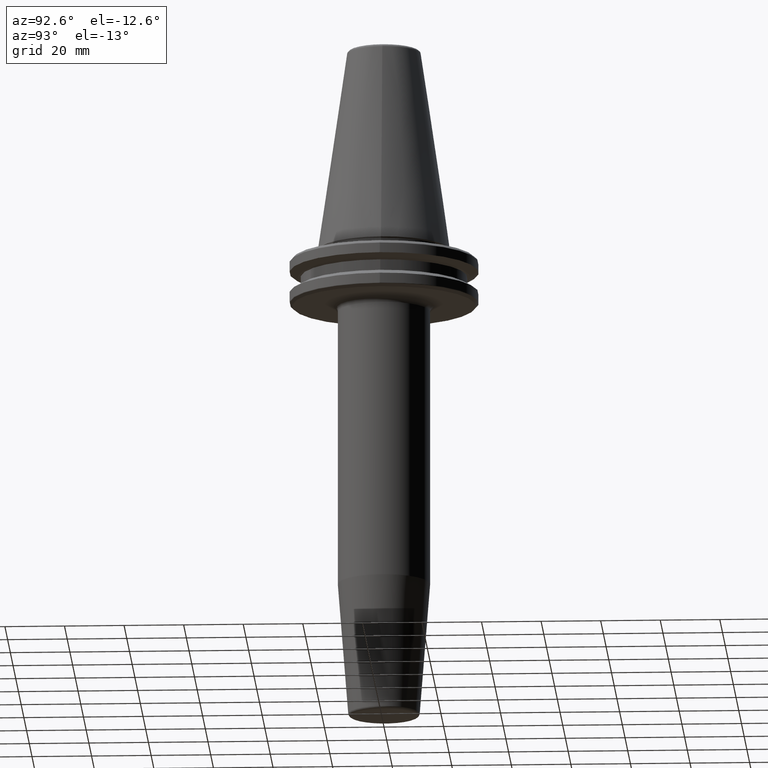
[diagram: clean part render]
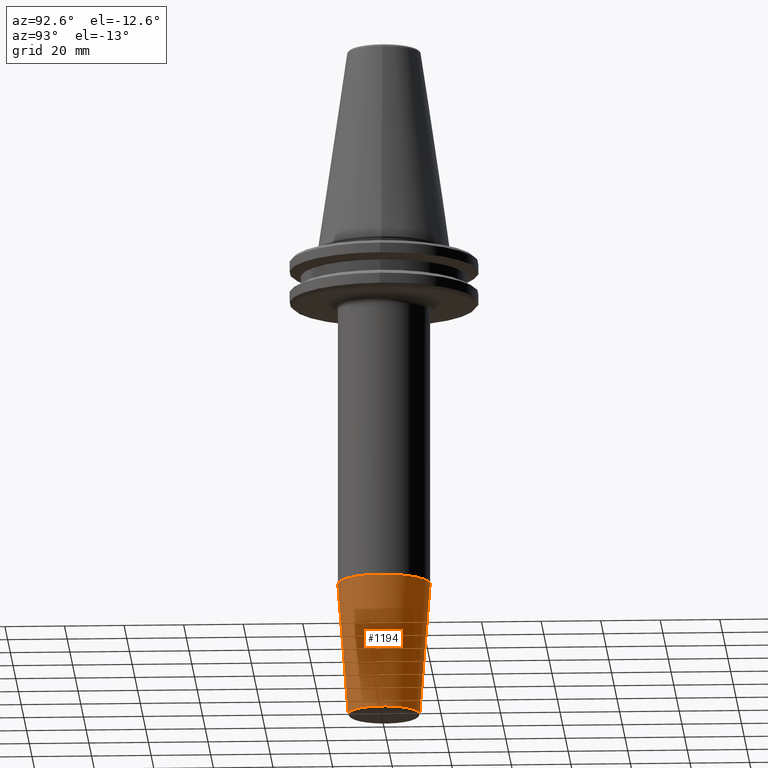
[diagram: same view with one face highlighted and labeled with its STEP entity id]
A machine part, auxiliary view. The second image highlights one B-rep face of the part: STEP entity #1194.
In plain terms, the highlighted conical surface has half-angle 4.5 deg.
Its self-contained STEP definition (entity closure, byte-faithful):
#22 = DIRECTION ( 'NONE',  ( 0.0000000000000000000, -0.07845909572783677000, 0.9969173337331286300 ) ) ;
#24 = ORIENTED_EDGE ( 'NONE', *, *, #651, .F. ) ;
#65 = EDGE_CURVE ( 'NONE', #402, #1019, #843, .T. ) ;
#103 = DIRECTION ( 'NONE',  ( -0.0000000000000000000, 1.256330602389183300E-016, -1.000000000000000000 ) ) ;
#121 = AXIS2_PLACEMENT_3D ( 'NONE', #693, #103, #787 ) ;
#181 = AXIS2_PLACEMENT_3D ( 'NONE', #352, #828, #367 ) ;
#234 = CARTESIAN_POINT ( 'NONE',  ( 0.0000000000000000000, 12.00000000000000000, -159.0784590957278500 ) ) ;
#287 = VECTOR ( 'NONE', #22, 1000.000000000000000 ) ;
#309 = CONICAL_SURFACE ( 'NONE', #325, 12.00000000000000000, 0.07853981633973650100 ) ;
#325 = AXIS2_PLACEMENT_3D ( 'NONE', #1146, #1243, #762 ) ;
#352 = CARTESIAN_POINT ( 'NONE',  ( 0.0000000000000000000, 3.310199825829634700E-016, -159.0784590957278500 ) ) ;
#367 = DIRECTION ( 'NONE',  ( 0.0000000000000000000, 1.000000000000000000, 0.0000000000000000000 ) ) ;
#382 = VERTEX_POINT ( 'NONE', #963 ) ;
#402 = VERTEX_POINT ( 'NONE', #234 ) ;
#481 = ORIENTED_EDGE ( 'NONE', *, *, #1092, .T. ) ;
#539 = CARTESIAN_POINT ( 'NONE',  ( 0.0000000000000000000, -12.00000000000000000, -159.0784590957278500 ) ) ;
#542 = ORIENTED_EDGE ( 'NONE', *, *, #65, .F. ) ;
#568 = EDGE_CURVE ( 'NONE', #402, #833, #1235, .T. ) ;
#596 = FACE_OUTER_BOUND ( 'NONE', #1203, .T. ) ;
#651 = EDGE_CURVE ( 'NONE', #1019, #382, #1052, .T. ) ;
#669 = VECTOR ( 'NONE', #1214, 1000.000000000000000 ) ;
#685 = CARTESIAN_POINT ( 'NONE',  ( 1.469576158976823900E-015, -12.00000000000000000, -159.0784590957278500 ) ) ;
#693 = CARTESIAN_POINT ( 'NONE',  ( 0.0000000000000000000, -5.256097865015170500E-015, -114.6067425191115900 ) ) ;
#712 = CIRCLE ( 'NONE', #121, 15.50000000000000500 ) ;
#736 = CARTESIAN_POINT ( 'NONE',  ( 1.469576158976823900E-015, 12.00000000000000000, -159.0784590957278500 ) ) ;
#762 = DIRECTION ( 'NONE',  ( 0.0000000000000000000, -1.000000000000000000, 0.0000000000000000000 ) ) ;
#787 = DIRECTION ( 'NONE',  ( 0.0000000000000000000, 1.000000000000000000, 0.0000000000000000000 ) ) ;
#828 = DIRECTION ( 'NONE',  ( -0.0000000000000000000, 1.256330602389183300E-016, -1.000000000000000000 ) ) ;
#833 = VERTEX_POINT ( 'NONE', #1150 ) ;
#843 = CIRCLE ( 'NONE', #181, 12.00000000000000000 ) ;
#963 = CARTESIAN_POINT ( 'NONE',  ( 0.0000000000000000000, -15.50000000000001100, -114.6067425191115900 ) ) ;
#1016 = ORIENTED_EDGE ( 'NONE', *, *, #568, .T. ) ;
#1019 = VERTEX_POINT ( 'NONE', #685 ) ;
#1052 = LINE ( 'NONE', #539, #287 ) ;
#1092 = EDGE_CURVE ( 'NONE', #833, #382, #712, .T. ) ;
#1146 = CARTESIAN_POINT ( 'NONE',  ( 0.0000000000000000000, 3.310199825829634700E-016, -159.0784590957278500 ) ) ;
#1150 = CARTESIAN_POINT ( 'NONE',  ( 1.898202538678398000E-015, 15.50000000000000000, -114.6067425191115900 ) ) ;
#1194 = ADVANCED_FACE ( 'NONE', ( #596 ), #309, .T. ) ;
#1203 = EDGE_LOOP ( 'NONE', ( #542, #1016, #481, #24 ) ) ;
#1214 = DIRECTION ( 'NONE',  ( 9.608468044709092000E-018, 0.07845909572783652000, 0.9969173337331286300 ) ) ;
#1235 = LINE ( 'NONE', #736, #669 ) ;
#1243 = DIRECTION ( 'NONE',  ( 0.0000000000000000000, -1.256330602389183300E-016, 1.000000000000000000 ) ) ;